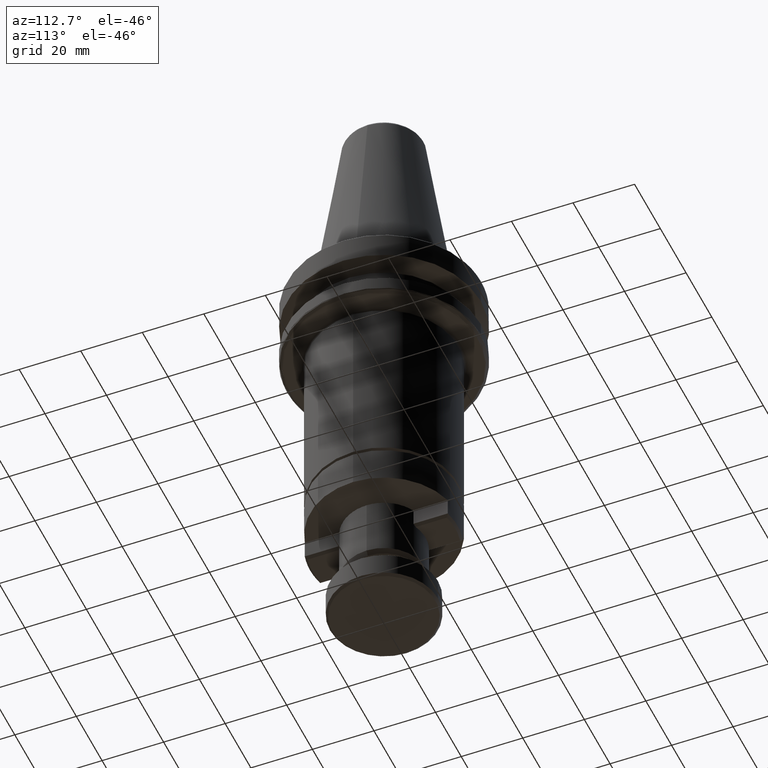
[diagram: clean part render]
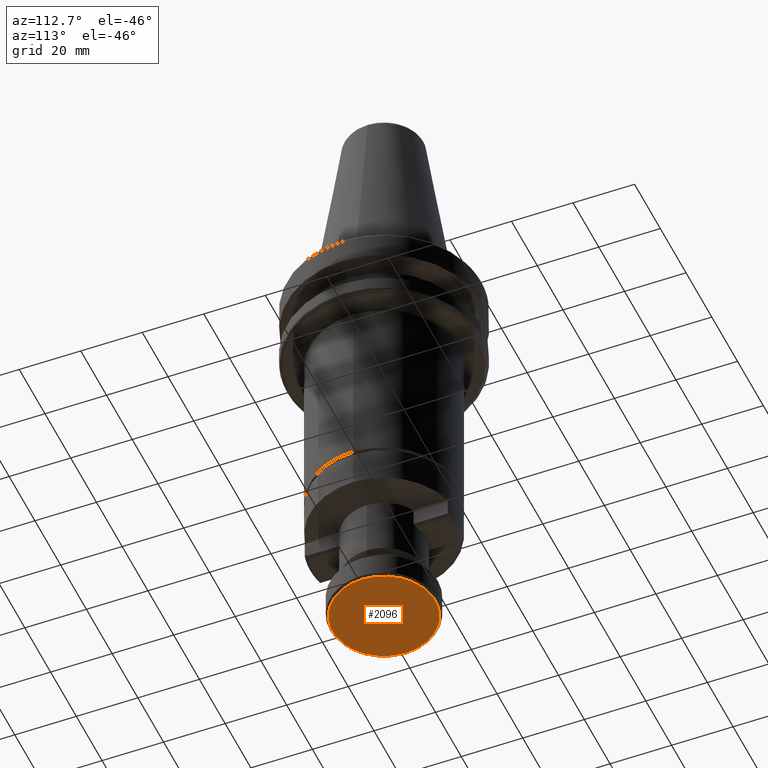
[diagram: same view with one face highlighted and labeled with its STEP entity id]
A machine part, auxiliary view. The second image highlights one B-rep face of the part: STEP entity #2096.
In plain terms, the highlighted planar face has unit normal (0, 0, -1).
Its self-contained STEP definition (entity closure, byte-faithful):
#43 = DIRECTION ( 'NONE',  ( -0.0000000000000000000, 0.0000000000000000000, -1.000000000000000000 ) ) ;
#139 = CARTESIAN_POINT ( 'NONE',  ( 16.75000000000000000, 0.0000000000000000000, -135.0000000000000000 ) ) ;
#240 = AXIS2_PLACEMENT_3D ( 'NONE', #1831, #43, #2128 ) ;
#356 = VERTEX_POINT ( 'NONE', #139 ) ;
#399 = ORIENTED_EDGE ( 'NONE', *, *, #1848, .T. ) ;
#648 = AXIS2_PLACEMENT_3D ( 'NONE', #3832, #3389, #3546 ) ;
#1178 = VERTEX_POINT ( 'NONE', #3695 ) ;
#1831 = CARTESIAN_POINT ( 'NONE',  ( 0.0000000000000000000, 0.0000000000000000000, -135.0000000000000000 ) ) ;
#1848 = EDGE_CURVE ( 'NONE', #1178, #356, #3501, .T. ) ;
#2057 = ORIENTED_EDGE ( 'NONE', *, *, #2988, .T. ) ;
#2090 = PLANE ( 'NONE',  #648 ) ;
#2096 = ADVANCED_FACE ( 'NONE', ( #2312 ), #2090, .T. ) ;
#2128 = DIRECTION ( 'NONE',  ( 1.000000000000000000, 0.0000000000000000000, 0.0000000000000000000 ) ) ;
#2275 = CARTESIAN_POINT ( 'NONE',  ( 0.0000000000000000000, 0.0000000000000000000, -135.0000000000000000 ) ) ;
#2281 = DIRECTION ( 'NONE',  ( -0.0000000000000000000, 0.0000000000000000000, -1.000000000000000000 ) ) ;
#2290 = DIRECTION ( 'NONE',  ( 1.000000000000000000, 0.0000000000000000000, 0.0000000000000000000 ) ) ;
#2312 = FACE_OUTER_BOUND ( 'NONE', #2340, .T. ) ;
#2340 = EDGE_LOOP ( 'NONE', ( #2057, #399 ) ) ;
#2988 = EDGE_CURVE ( 'NONE', #356, #1178, #3462, .T. ) ;
#3389 = DIRECTION ( 'NONE',  ( 0.0000000000000000000, 0.0000000000000000000, -1.000000000000000000 ) ) ;
#3462 = CIRCLE ( 'NONE', #240, 16.75000000000000000 ) ;
#3501 = CIRCLE ( 'NONE', #3692, 16.75000000000000000 ) ;
#3546 = DIRECTION ( 'NONE',  ( -1.000000000000000000, 0.0000000000000000000, 0.0000000000000000000 ) ) ;
#3692 = AXIS2_PLACEMENT_3D ( 'NONE', #2275, #2281, #2290 ) ;
#3695 = CARTESIAN_POINT ( 'NONE',  ( -16.75000000000000000, 2.097207643539842200E-015, -135.0000000000000000 ) ) ;
#3832 = CARTESIAN_POINT ( 'NONE',  ( 16.95100000000000100, -16.95100000000000100, -135.0000000000000000 ) ) ;